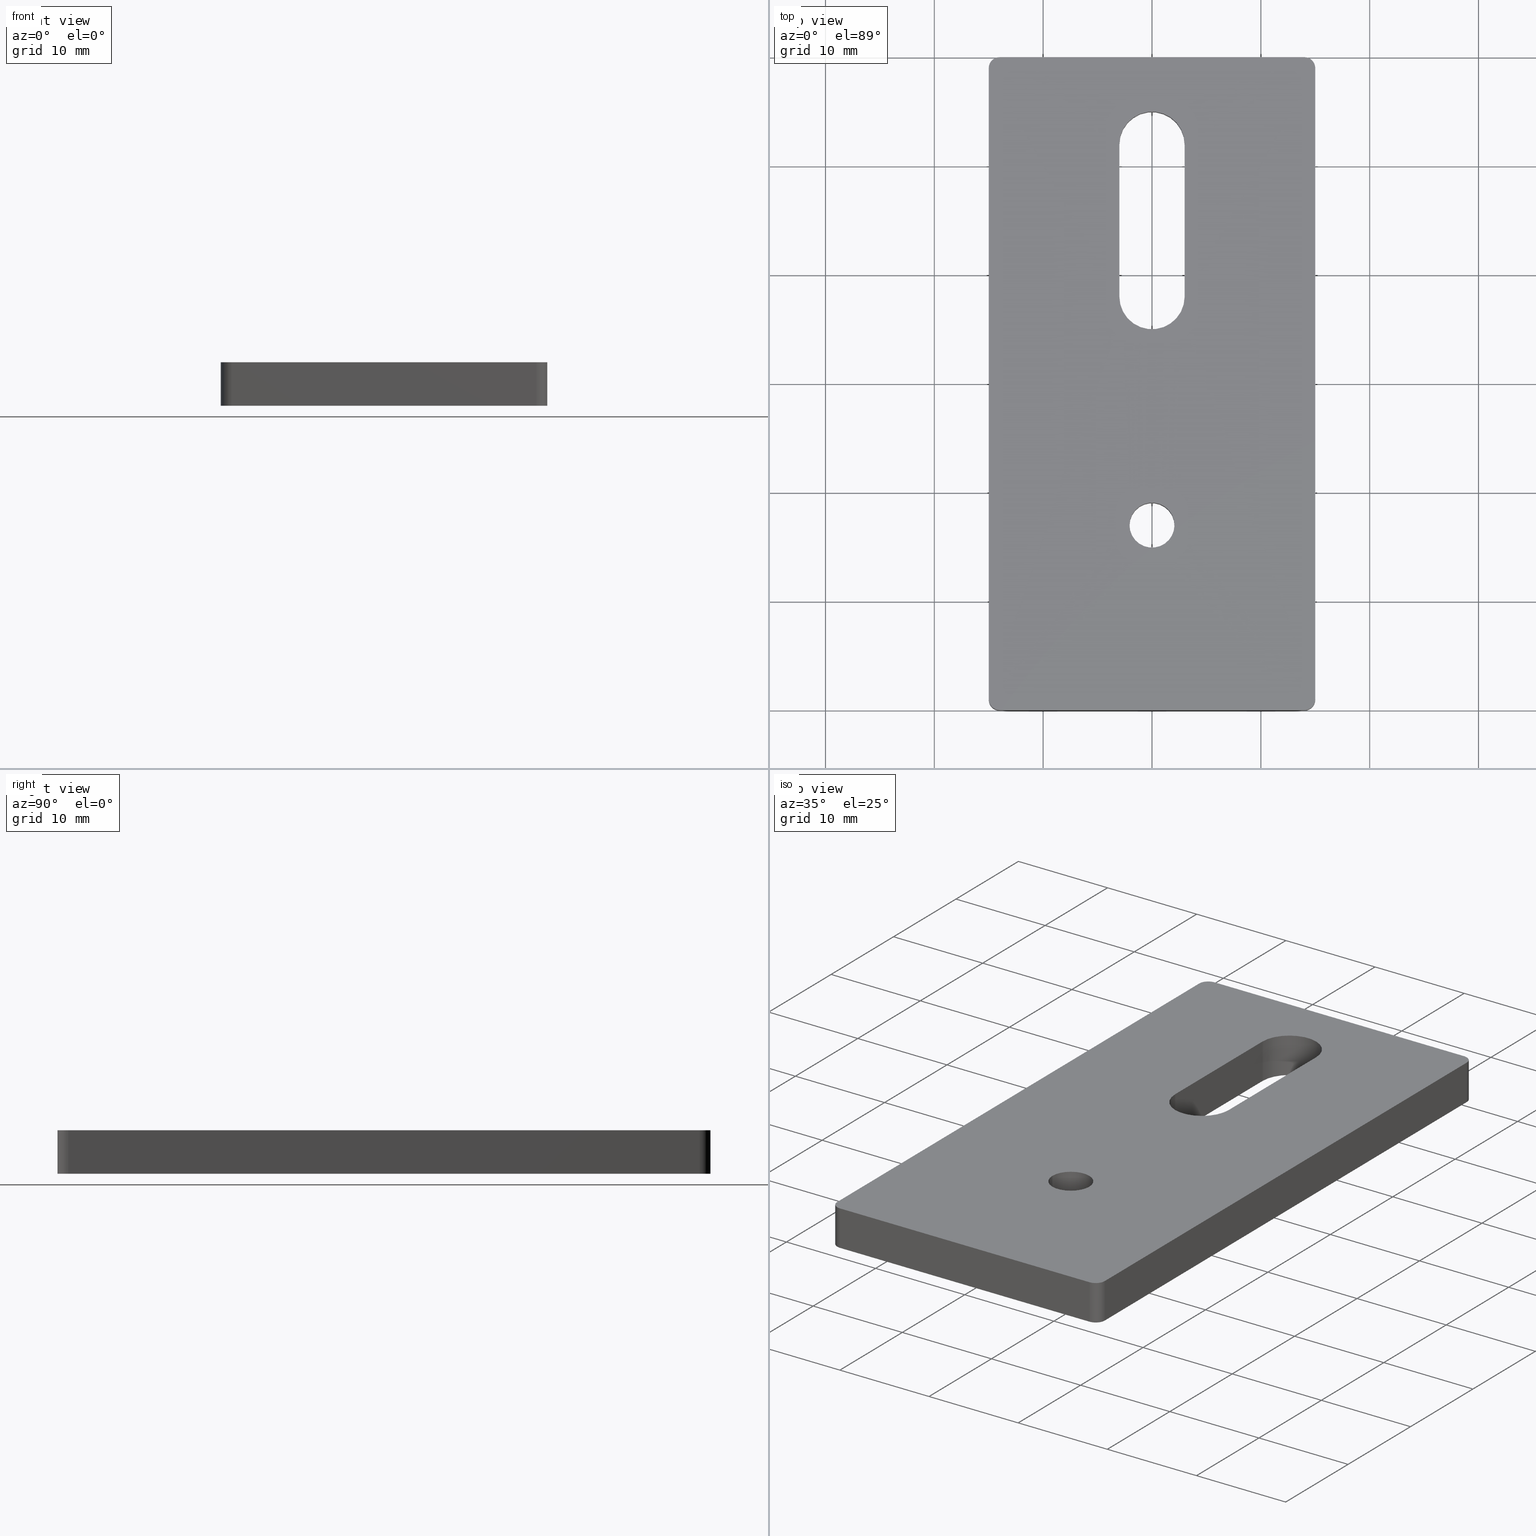
[diagram: canonical four-view strip — front | top / right | iso, engineering-drawing reading convention]
A machine part, canonical four-view strip (front | top / right | iso — engineering-drawing reading convention). The complete STEP part file that produces these views, byte-faithful:
ISO-10303-21;
HEADER;
/****************************************************************
 * Generated by software with PDE/Lib inside                    *
 * PDElib Version v4.4, created Mon 02/23/2004                  *
 * International Technegroup Inc. (www.iti-oh.com)              *
 ****************************************************************/
FILE_DESCRIPTION(('STEP AP203'),'2;1');
FILE_NAME('27.218.00.stp','2011-02-14T10:20:03',(''),(''),'2009.3.110','THINKDESIGN','');
FILE_SCHEMA(('CONFIG_CONTROL_DESIGN'));
ENDSEC;
DATA;
#2=CARTESIAN_POINT('',(0.0,16.999999999999986,-0.000000010000001));
#3=DIRECTION('',(0.0,0.0,1.0));
#4=DIRECTION('',(0.0,1.0,0.0));
#5=AXIS2_PLACEMENT_3D('',#2,#3,#4);
#6=CYLINDRICAL_SURFACE('',#5,2.066999999999999);
#7=CARTESIAN_POINT('',(-2.067000000000014,16.999999999999993,0.0));
#8=VERTEX_POINT('',#7);
#9=CARTESIAN_POINT('',(2.066999999999993,16.999999999999993,0.0));
#10=VERTEX_POINT('',#9);
#11=CARTESIAN_POINT('',(0.0,16.999999999999993,0.0));
#12=DIRECTION('',(0.0,0.0,1.0));
#13=DIRECTION('',(1.0,0.0,0.0));
#14=AXIS2_PLACEMENT_3D('',#11,#12,#13);
#15=CIRCLE('',#14,2.066999999999999);
#16=EDGE_CURVE('',#8,#10,#15,.T.);
#17=ORIENTED_EDGE('',*,*,#16,.F.);
#18=CARTESIAN_POINT('',(-2.067000000000014,16.999999999999993,4.0));
#19=VERTEX_POINT('',#18);
#20=CARTESIAN_POINT('',(-2.067000000000014,16.999999999999993,0.0));
#21=DIRECTION('',(0.0,0.0,1.0));
#22=VECTOR('',#21,4.0);
#23=LINE('',#20,#22);
#24=EDGE_CURVE('',#8,#19,#23,.T.);
#25=ORIENTED_EDGE('',*,*,#24,.T.);
#26=CARTESIAN_POINT('',(2.066999999999993,16.999999999999993,4.0));
#27=VERTEX_POINT('',#26);
#28=CARTESIAN_POINT('',(0.0,16.999999999999993,4.0));
#29=DIRECTION('',(0.0,0.0,1.0));
#30=DIRECTION('',(0.0,1.0,0.0));
#31=AXIS2_PLACEMENT_3D('',#28,#29,#30);
#32=CIRCLE('',#31,2.066999999999999);
#33=EDGE_CURVE('',#19,#27,#32,.T.);
#34=ORIENTED_EDGE('',*,*,#33,.T.);
#35=CARTESIAN_POINT('',(2.066999999999993,16.999999999999993,0.0));
#36=DIRECTION('',(0.0,0.0,1.0));
#37=VECTOR('',#36,4.0);
#38=LINE('',#35,#37);
#39=EDGE_CURVE('',#10,#27,#38,.T.);
#40=ORIENTED_EDGE('',*,*,#39,.F.);
#41=EDGE_LOOP('',(#17,#25,#34,#40));
#42=FACE_OUTER_BOUND('',#41,.T.);
#43=ADVANCED_FACE('',(#42),#6,.F.);
#44=CARTESIAN_POINT('',(-15.400000000000013,59.999999999999979,4.200000000000000));
#45=DIRECTION('',(0.0,-1.0,0.0));
#46=DIRECTION('',(0.0,0.0,-1.0));
#47=AXIS2_PLACEMENT_3D('',#44,#45,#46);
#48=PLANE('',#47);
#49=CARTESIAN_POINT('',(14.000000000000007,59.999999999999979,4.0));
#50=VERTEX_POINT('',#49);
#51=CARTESIAN_POINT('',(-14.000000000000007,59.999999999999979,4.0));
#52=VERTEX_POINT('',#51);
#53=CARTESIAN_POINT('',(14.000000000000007,59.999999999999979,4.0));
#54=DIRECTION('',(-1.0,0.0,0.0));
#55=VECTOR('',#54,28.000000000000014);
#56=LINE('',#53,#55);
#57=EDGE_CURVE('',#50,#52,#56,.T.);
#58=ORIENTED_EDGE('',*,*,#57,.F.);
#59=CARTESIAN_POINT('',(14.000000000000007,59.999999999999979,0.0));
#60=VERTEX_POINT('',#59);
#61=CARTESIAN_POINT('',(14.000000000000007,59.999999999999979,4.0));
#62=DIRECTION('',(0.0,0.0,-1.0));
#63=VECTOR('',#62,4.0);
#64=LINE('',#61,#63);
#65=EDGE_CURVE('',#50,#60,#64,.T.);
#66=ORIENTED_EDGE('',*,*,#65,.T.);
#67=CARTESIAN_POINT('',(-14.000000000000007,59.999999999999979,0.0));
#68=VERTEX_POINT('',#67);
#69=CARTESIAN_POINT('',(14.000000000000007,59.999999999999979,0.0));
#70=DIRECTION('',(-1.0,0.0,0.0));
#71=VECTOR('',#70,28.000000000000014);
#72=LINE('',#69,#71);
#73=EDGE_CURVE('',#60,#68,#72,.T.);
#74=ORIENTED_EDGE('',*,*,#73,.T.);
#75=CARTESIAN_POINT('',(-14.000000000000007,59.999999999999979,0.0));
#76=DIRECTION('',(0.0,0.0,1.0));
#77=VECTOR('',#76,4.0);
#78=LINE('',#75,#77);
#79=EDGE_CURVE('',#68,#52,#78,.T.);
#80=ORIENTED_EDGE('',*,*,#79,.T.);
#81=EDGE_LOOP('',(#58,#66,#74,#80));
#82=FACE_OUTER_BOUND('',#81,.T.);
#83=ADVANCED_FACE('',(#82),#48,.F.);
#84=CARTESIAN_POINT('',(-15.000000000000007,-1.899999999999999,4.200000000000000));
#85=DIRECTION('',(1.0,0.0,0.0));
#86=DIRECTION('',(0.0,0.0,-1.0));
#87=AXIS2_PLACEMENT_3D('',#84,#85,#86);
#88=PLANE('',#87);
#89=CARTESIAN_POINT('',(-15.000000000000007,58.999999999999979,0.0));
#90=VERTEX_POINT('',#89);
#91=CARTESIAN_POINT('',(-15.000000000000007,1.0,0.0));
#92=VERTEX_POINT('',#91);
#93=CARTESIAN_POINT('',(-15.000000000000007,58.999999999999979,0.0));
#94=DIRECTION('',(0.0,-1.0,0.0));
#95=VECTOR('',#94,57.999999999999979);
#96=LINE('',#93,#95);
#97=EDGE_CURVE('',#90,#92,#96,.T.);
#98=ORIENTED_EDGE('',*,*,#97,.T.);
#99=CARTESIAN_POINT('',(-15.000000000000007,1.0,4.0));
#100=VERTEX_POINT('',#99);
#101=CARTESIAN_POINT('',(-15.000000000000007,1.0,0.0));
#102=DIRECTION('',(0.0,0.0,1.0));
#103=VECTOR('',#102,4.0);
#104=LINE('',#101,#103);
#105=EDGE_CURVE('',#92,#100,#104,.T.);
#106=ORIENTED_EDGE('',*,*,#105,.T.);
#107=CARTESIAN_POINT('',(-15.000000000000007,58.999999999999979,4.0));
#108=VERTEX_POINT('',#107);
#109=CARTESIAN_POINT('',(-15.000000000000007,58.999999999999979,4.0));
#110=DIRECTION('',(0.0,-1.0,0.0));
#111=VECTOR('',#110,57.999999999999979);
#112=LINE('',#109,#111);
#113=EDGE_CURVE('',#108,#100,#112,.T.);
#114=ORIENTED_EDGE('',*,*,#113,.F.);
#115=CARTESIAN_POINT('',(-15.000000000000007,58.999999999999979,4.0));
#116=DIRECTION('',(0.0,0.0,-1.0));
#117=VECTOR('',#116,4.0);
#118=LINE('',#115,#117);
#119=EDGE_CURVE('',#108,#90,#118,.T.);
#120=ORIENTED_EDGE('',*,*,#119,.T.);
#121=EDGE_LOOP('',(#98,#106,#114,#120));
#122=FACE_OUTER_BOUND('',#121,.T.);
#123=ADVANCED_FACE('',(#122),#88,.F.);
#124=CARTESIAN_POINT('',(-15.400000000000013,0.0,-0.200000000000000));
#125=DIRECTION('',(0.0,1.0,0.0));
#126=DIRECTION('',(0.0,0.0,1.0));
#127=AXIS2_PLACEMENT_3D('',#124,#125,#126);
#128=PLANE('',#127);
#129=CARTESIAN_POINT('',(-14.000000000000007,0.0,4.0));
#130=VERTEX_POINT('',#129);
#131=CARTESIAN_POINT('',(14.000000000000007,0.0,4.0));
#132=VERTEX_POINT('',#131);
#133=CARTESIAN_POINT('',(-14.000000000000007,0.0,4.0));
#134=DIRECTION('',(1.0,0.0,0.0));
#135=VECTOR('',#134,28.000000000000014);
#136=LINE('',#133,#135);
#137=EDGE_CURVE('',#130,#132,#136,.T.);
#138=ORIENTED_EDGE('',*,*,#137,.F.);
#139=CARTESIAN_POINT('',(-14.000000000000007,0.0,0.0));
#140=VERTEX_POINT('',#139);
#141=CARTESIAN_POINT('',(-14.000000000000007,0.0,4.0));
#142=DIRECTION('',(0.0,0.0,-1.0));
#143=VECTOR('',#142,4.0);
#144=LINE('',#141,#143);
#145=EDGE_CURVE('',#130,#140,#144,.T.);
#146=ORIENTED_EDGE('',*,*,#145,.T.);
#147=CARTESIAN_POINT('',(14.000000000000007,0.0,0.0));
#148=VERTEX_POINT('',#147);
#149=CARTESIAN_POINT('',(-14.000000000000007,0.0,0.0));
#150=DIRECTION('',(1.0,0.0,0.0));
#151=VECTOR('',#150,28.000000000000014);
#152=LINE('',#149,#151);
#153=EDGE_CURVE('',#140,#148,#152,.T.);
#154=ORIENTED_EDGE('',*,*,#153,.T.);
#155=CARTESIAN_POINT('',(14.000000000000007,0.0,0.0));
#156=DIRECTION('',(0.0,0.0,1.0));
#157=VECTOR('',#156,4.0);
#158=LINE('',#155,#157);
#159=EDGE_CURVE('',#148,#132,#158,.T.);
#160=ORIENTED_EDGE('',*,*,#159,.T.);
#161=EDGE_LOOP('',(#138,#146,#154,#160));
#162=FACE_OUTER_BOUND('',#161,.T.);
#163=ADVANCED_FACE('',(#162),#128,.F.);
#164=CARTESIAN_POINT('',(15.000000000000007,-1.899999999999999,-0.200000000000000));
#165=DIRECTION('',(-1.0,0.0,0.0));
#166=DIRECTION('',(0.0,0.0,1.0));
#167=AXIS2_PLACEMENT_3D('',#164,#165,#166);
#168=PLANE('',#167);
#169=CARTESIAN_POINT('',(15.000000000000007,1.0,4.0));
#170=VERTEX_POINT('',#169);
#171=CARTESIAN_POINT('',(15.000000000000007,58.999999999999979,4.0));
#172=VERTEX_POINT('',#171);
#173=CARTESIAN_POINT('',(15.000000000000007,1.0,4.0));
#174=DIRECTION('',(0.0,1.0,0.0));
#175=VECTOR('',#174,57.999999999999979);
#176=LINE('',#173,#175);
#177=EDGE_CURVE('',#170,#172,#176,.T.);
#178=ORIENTED_EDGE('',*,*,#177,.F.);
#179=CARTESIAN_POINT('',(15.000000000000007,1.0,0.0));
#180=VERTEX_POINT('',#179);
#181=CARTESIAN_POINT('',(15.000000000000007,1.0,4.0));
#182=DIRECTION('',(0.0,0.0,-1.0));
#183=VECTOR('',#182,4.0);
#184=LINE('',#181,#183);
#185=EDGE_CURVE('',#170,#180,#184,.T.);
#186=ORIENTED_EDGE('',*,*,#185,.T.);
#187=CARTESIAN_POINT('',(15.000000000000007,58.999999999999979,0.0));
#188=VERTEX_POINT('',#187);
#189=CARTESIAN_POINT('',(15.000000000000007,1.0,0.0));
#190=DIRECTION('',(0.0,1.0,0.0));
#191=VECTOR('',#190,57.999999999999979);
#192=LINE('',#189,#191);
#193=EDGE_CURVE('',#180,#188,#192,.T.);
#194=ORIENTED_EDGE('',*,*,#193,.T.);
#195=CARTESIAN_POINT('',(15.000000000000007,58.999999999999979,0.0));
#196=DIRECTION('',(0.0,0.0,1.0));
#197=VECTOR('',#196,4.0);
#198=LINE('',#195,#197);
#199=EDGE_CURVE('',#188,#172,#198,.T.);
#200=ORIENTED_EDGE('',*,*,#199,.T.);
#201=EDGE_LOOP('',(#178,#186,#194,#200));
#202=FACE_OUTER_BOUND('',#201,.T.);
#203=ADVANCED_FACE('',(#202),#168,.F.);
#204=CARTESIAN_POINT('',(-16.500000000000007,-3.0,4.0));
#205=DIRECTION('',(0.0,0.0,1.0));
#206=DIRECTION('',(1.0,0.0,0.0));
#207=AXIS2_PLACEMENT_3D('',#204,#205,#206);
#208=PLANE('',#207);
#209=ORIENTED_EDGE('',*,*,#113,.T.);
#210=CARTESIAN_POINT('',(-14.000000000000007,1.0,4.0));
#211=DIRECTION('',(0.0,0.0,1.0));
#212=DIRECTION('',(1.0,0.0,0.0));
#213=AXIS2_PLACEMENT_3D('',#210,#211,#212);
#214=CIRCLE('',#213,1.000000000000001);
#215=EDGE_CURVE('',#100,#130,#214,.T.);
#216=ORIENTED_EDGE('',*,*,#215,.T.);
#217=ORIENTED_EDGE('',*,*,#137,.T.);
#218=CARTESIAN_POINT('',(14.000000000000007,1.0,4.0));
#219=DIRECTION('',(0.0,0.0,1.0));
#220=DIRECTION('',(1.0,0.0,0.0));
#221=AXIS2_PLACEMENT_3D('',#218,#219,#220);
#222=CIRCLE('',#221,1.000000000000001);
#223=EDGE_CURVE('',#132,#170,#222,.T.);
#224=ORIENTED_EDGE('',*,*,#223,.T.);
#225=ORIENTED_EDGE('',*,*,#177,.T.);
#226=CARTESIAN_POINT('',(14.000000000000007,58.999999999999979,4.0));
#227=DIRECTION('',(0.0,0.0,1.0));
#228=DIRECTION('',(1.0,0.0,0.0));
#229=AXIS2_PLACEMENT_3D('',#226,#227,#228);
#230=CIRCLE('',#229,1.000000000000001);
#231=EDGE_CURVE('',#172,#50,#230,.T.);
#232=ORIENTED_EDGE('',*,*,#231,.T.);
#233=ORIENTED_EDGE('',*,*,#57,.T.);
#234=CARTESIAN_POINT('',(-14.000000000000007,58.999999999999979,4.0));
#235=DIRECTION('',(0.0,0.0,1.0));
#236=DIRECTION('',(1.0,0.0,0.0));
#237=AXIS2_PLACEMENT_3D('',#234,#235,#236);
#238=CIRCLE('',#237,1.000000000000001);
#239=EDGE_CURVE('',#52,#108,#238,.T.);
#240=ORIENTED_EDGE('',*,*,#239,.T.);
#241=EDGE_LOOP('',(#209,#216,#217,#224,#225,#232,#233,#240));
#242=FACE_OUTER_BOUND('',#241,.T.);
#243=CARTESIAN_POINT('',(0.0,16.999999999999993,4.0));
#244=DIRECTION('',(0.0,0.0,1.0));
#245=DIRECTION('',(0.0,1.0,0.0));
#246=AXIS2_PLACEMENT_3D('',#243,#244,#245);
#247=CIRCLE('',#246,2.066999999999999);
#248=EDGE_CURVE('',#27,#19,#247,.T.);
#249=ORIENTED_EDGE('',*,*,#248,.F.);
#250=ORIENTED_EDGE('',*,*,#33,.F.);
#251=EDGE_LOOP('',(#249,#250));
#252=FACE_BOUND('',#251,.T.);
#253=CARTESIAN_POINT('',(3.0,51.999999999999993,4.0));
#254=VERTEX_POINT('',#253);
#255=CARTESIAN_POINT('',(-3.000000000000007,51.999999999999993,4.0));
#256=VERTEX_POINT('',#255);
#257=CARTESIAN_POINT('',(0.0,51.999999999999993,4.0));
#258=DIRECTION('',(0.0,0.0,1.0));
#259=DIRECTION('',(0.0,-1.0,0.0));
#260=AXIS2_PLACEMENT_3D('',#257,#258,#259);
#261=CIRCLE('',#260,3.000000000000002);
#262=EDGE_CURVE('',#254,#256,#261,.T.);
#263=ORIENTED_EDGE('',*,*,#262,.F.);
#264=CARTESIAN_POINT('',(3.0,37.999999999999993,4.0));
#265=VERTEX_POINT('',#264);
#266=CARTESIAN_POINT('',(3.0,37.999999999999993,4.0));
#267=DIRECTION('',(0.0,1.0,0.0));
#268=VECTOR('',#267,14.0);
#269=LINE('',#266,#268);
#270=EDGE_CURVE('',#265,#254,#269,.T.);
#271=ORIENTED_EDGE('',*,*,#270,.F.);
#272=CARTESIAN_POINT('',(-3.000000000000007,37.999999999999993,4.0));
#273=VERTEX_POINT('',#272);
#274=CARTESIAN_POINT('',(0.0,38.000000000000007,4.0));
#275=DIRECTION('',(0.0,0.0,1.0));
#276=DIRECTION('',(0.0,1.0,0.0));
#277=AXIS2_PLACEMENT_3D('',#274,#275,#276);
#278=CIRCLE('',#277,2.999999999999996);
#279=EDGE_CURVE('',#273,#265,#278,.T.);
#280=ORIENTED_EDGE('',*,*,#279,.F.);
#281=CARTESIAN_POINT('',(-3.000000000000007,51.999999999999993,4.0));
#282=DIRECTION('',(0.0,-1.0,0.0));
#283=VECTOR('',#282,14.0);
#284=LINE('',#281,#283);
#285=EDGE_CURVE('',#256,#273,#284,.T.);
#286=ORIENTED_EDGE('',*,*,#285,.F.);
#287=EDGE_LOOP('',(#263,#271,#280,#286));
#288=FACE_BOUND('',#287,.T.);
#289=ADVANCED_FACE('',(#242,#252,#288),#208,.T.);
#290=CARTESIAN_POINT('',(-16.500000000000007,-3.0,0.0));
#291=DIRECTION('',(0.0,0.0,1.0));
#292=DIRECTION('',(1.0,0.0,0.0));
#293=AXIS2_PLACEMENT_3D('',#290,#291,#292);
#294=PLANE('',#293);
#295=ORIENTED_EDGE('',*,*,#153,.F.);
#296=CARTESIAN_POINT('',(-14.000000000000007,1.0,0.0));
#297=DIRECTION('',(0.0,0.0,-1.0));
#298=DIRECTION('',(1.0,0.0,0.0));
#299=AXIS2_PLACEMENT_3D('',#296,#297,#298);
#300=CIRCLE('',#299,1.000000000000001);
#301=EDGE_CURVE('',#140,#92,#300,.T.);
#302=ORIENTED_EDGE('',*,*,#301,.T.);
#303=ORIENTED_EDGE('',*,*,#97,.F.);
#304=CARTESIAN_POINT('',(-14.000000000000007,58.999999999999979,0.0));
#305=DIRECTION('',(0.0,0.0,-1.0));
#306=DIRECTION('',(1.0,0.0,0.0));
#307=AXIS2_PLACEMENT_3D('',#304,#305,#306);
#308=CIRCLE('',#307,1.000000000000001);
#309=EDGE_CURVE('',#90,#68,#308,.T.);
#310=ORIENTED_EDGE('',*,*,#309,.T.);
#311=ORIENTED_EDGE('',*,*,#73,.F.);
#312=CARTESIAN_POINT('',(14.000000000000007,58.999999999999979,0.0));
#313=DIRECTION('',(0.0,0.0,-1.0));
#314=DIRECTION('',(1.0,0.0,0.0));
#315=AXIS2_PLACEMENT_3D('',#312,#313,#314);
#316=CIRCLE('',#315,1.000000000000001);
#317=EDGE_CURVE('',#60,#188,#316,.T.);
#318=ORIENTED_EDGE('',*,*,#317,.T.);
#319=ORIENTED_EDGE('',*,*,#193,.F.);
#320=CARTESIAN_POINT('',(14.000000000000007,1.0,0.0));
#321=DIRECTION('',(0.0,0.0,-1.0));
#322=DIRECTION('',(1.0,0.0,0.0));
#323=AXIS2_PLACEMENT_3D('',#320,#321,#322);
#324=CIRCLE('',#323,1.000000000000001);
#325=EDGE_CURVE('',#180,#148,#324,.T.);
#326=ORIENTED_EDGE('',*,*,#325,.T.);
#327=EDGE_LOOP('',(#295,#302,#303,#310,#311,#318,#319,#326));
#328=FACE_OUTER_BOUND('',#327,.T.);
#329=CARTESIAN_POINT('',(0.0,16.999999999999993,0.0));
#330=DIRECTION('',(0.0,0.0,1.0));
#331=DIRECTION('',(1.0,0.0,0.0));
#332=AXIS2_PLACEMENT_3D('',#329,#330,#331);
#333=CIRCLE('',#332,2.066999999999999);
#334=EDGE_CURVE('',#10,#8,#333,.T.);
#335=ORIENTED_EDGE('',*,*,#334,.T.);
#336=ORIENTED_EDGE('',*,*,#16,.T.);
#337=EDGE_LOOP('',(#335,#336));
#338=FACE_BOUND('',#337,.T.);
#339=CARTESIAN_POINT('',(3.0,37.999999999999993,0.0));
#340=VERTEX_POINT('',#339);
#341=CARTESIAN_POINT('',(3.0,51.999999999999993,0.0));
#342=VERTEX_POINT('',#341);
#343=CARTESIAN_POINT('',(3.0,37.999999999999993,0.0));
#344=DIRECTION('',(0.0,1.0,0.0));
#345=VECTOR('',#344,14.0);
#346=LINE('',#343,#345);
#347=EDGE_CURVE('',#340,#342,#346,.T.);
#348=ORIENTED_EDGE('',*,*,#347,.T.);
#349=CARTESIAN_POINT('',(-3.000000000000007,51.999999999999993,0.0));
#350=VERTEX_POINT('',#349);
#351=CARTESIAN_POINT('',(0.0,51.999999999999993,0.0));
#352=DIRECTION('',(0.0,0.0,1.0));
#353=DIRECTION('',(1.0,0.0,0.0));
#354=AXIS2_PLACEMENT_3D('',#351,#352,#353);
#355=CIRCLE('',#354,3.000000000000002);
#356=EDGE_CURVE('',#342,#350,#355,.T.);
#357=ORIENTED_EDGE('',*,*,#356,.T.);
#358=CARTESIAN_POINT('',(-3.000000000000007,37.999999999999993,0.0));
#359=VERTEX_POINT('',#358);
#360=CARTESIAN_POINT('',(-3.000000000000007,51.999999999999993,0.0));
#361=DIRECTION('',(0.0,-1.0,0.0));
#362=VECTOR('',#361,14.0);
#363=LINE('',#360,#362);
#364=EDGE_CURVE('',#350,#359,#363,.T.);
#365=ORIENTED_EDGE('',*,*,#364,.T.);
#366=CARTESIAN_POINT('',(0.0,38.000000000000007,0.0));
#367=DIRECTION('',(0.0,0.0,1.0));
#368=DIRECTION('',(1.0,0.0,0.0));
#369=AXIS2_PLACEMENT_3D('',#366,#367,#368);
#370=CIRCLE('',#369,3.000000000000002);
#371=EDGE_CURVE('',#359,#340,#370,.T.);
#372=ORIENTED_EDGE('',*,*,#371,.T.);
#373=EDGE_LOOP('',(#348,#357,#365,#372));
#374=FACE_BOUND('',#373,.T.);
#375=ADVANCED_FACE('',(#328,#338,#374),#294,.F.);
#376=CARTESIAN_POINT('',(0.0,16.999999999999993,-0.000000010000001));
#377=DIRECTION('',(0.0,0.0,1.0));
#378=DIRECTION('',(0.0,-1.0,0.0));
#379=AXIS2_PLACEMENT_3D('',#376,#377,#378);
#380=CYLINDRICAL_SURFACE('',#379,2.066999999999999);
#381=ORIENTED_EDGE('',*,*,#24,.F.);
#382=ORIENTED_EDGE('',*,*,#334,.F.);
#383=ORIENTED_EDGE('',*,*,#39,.T.);
#384=ORIENTED_EDGE('',*,*,#248,.T.);
#385=EDGE_LOOP('',(#381,#382,#383,#384));
#386=FACE_OUTER_BOUND('',#385,.T.);
#387=ADVANCED_FACE('',(#386),#380,.F.);
#388=CARTESIAN_POINT('',(7.105427E-015,51.999999999999993,-0.000000010000001));
#389=DIRECTION('',(0.0,0.0,1.0));
#390=DIRECTION('',(0.0,-1.0,0.0));
#391=AXIS2_PLACEMENT_3D('',#388,#389,#390);
#392=CYLINDRICAL_SURFACE('',#391,3.000000000000002);
#393=CARTESIAN_POINT('',(3.0,51.999999999999993,0.0));
#394=DIRECTION('',(0.0,0.0,1.0));
#395=VECTOR('',#394,4.0);
#396=LINE('',#393,#395);
#397=EDGE_CURVE('',#342,#254,#396,.T.);
#398=ORIENTED_EDGE('',*,*,#397,.T.);
#399=ORIENTED_EDGE('',*,*,#262,.T.);
#400=CARTESIAN_POINT('',(-3.000000000000007,51.999999999999993,0.0));
#401=DIRECTION('',(0.0,0.0,1.0));
#402=VECTOR('',#401,4.0);
#403=LINE('',#400,#402);
#404=EDGE_CURVE('',#350,#256,#403,.T.);
#405=ORIENTED_EDGE('',*,*,#404,.F.);
#406=ORIENTED_EDGE('',*,*,#356,.F.);
#407=EDGE_LOOP('',(#398,#399,#405,#406));
#408=FACE_OUTER_BOUND('',#407,.T.);
#409=ADVANCED_FACE('',(#408),#392,.F.);
#410=CARTESIAN_POINT('',(-3.000000000000007,37.299999999999990,-0.200000000000003));
#411=DIRECTION('',(-1.0,0.0,0.0));
#412=DIRECTION('',(0.0,0.0,1.0));
#413=AXIS2_PLACEMENT_3D('',#410,#411,#412);
#414=PLANE('',#413);
#415=ORIENTED_EDGE('',*,*,#404,.T.);
#416=ORIENTED_EDGE('',*,*,#285,.T.);
#417=CARTESIAN_POINT('',(-3.000000000000007,37.999999999999993,0.0));
#418=DIRECTION('',(0.0,0.0,1.0));
#419=VECTOR('',#418,4.0);
#420=LINE('',#417,#419);
#421=EDGE_CURVE('',#359,#273,#420,.T.);
#422=ORIENTED_EDGE('',*,*,#421,.F.);
#423=ORIENTED_EDGE('',*,*,#364,.F.);
#424=EDGE_LOOP('',(#415,#416,#422,#423));
#425=FACE_OUTER_BOUND('',#424,.T.);
#426=ADVANCED_FACE('',(#425),#414,.F.);
#427=CARTESIAN_POINT('',(0.0,38.000000000000007,-0.000000010000001));
#428=DIRECTION('',(0.0,0.0,1.0));
#429=DIRECTION('',(0.0,1.0,0.0));
#430=AXIS2_PLACEMENT_3D('',#427,#428,#429);
#431=CYLINDRICAL_SURFACE('',#430,3.000000000000002);
#432=ORIENTED_EDGE('',*,*,#421,.T.);
#433=ORIENTED_EDGE('',*,*,#279,.T.);
#434=CARTESIAN_POINT('',(3.0,37.999999999999993,0.0));
#435=DIRECTION('',(0.0,0.0,1.0));
#436=VECTOR('',#435,4.0);
#437=LINE('',#434,#436);
#438=EDGE_CURVE('',#340,#265,#437,.T.);
#439=ORIENTED_EDGE('',*,*,#438,.F.);
#440=ORIENTED_EDGE('',*,*,#371,.F.);
#441=EDGE_LOOP('',(#432,#433,#439,#440));
#442=FACE_OUTER_BOUND('',#441,.T.);
#443=ADVANCED_FACE('',(#442),#431,.F.);
#444=CARTESIAN_POINT('',(3.0,37.299999999999990,4.200000000000003));
#445=DIRECTION('',(1.0,0.0,0.0));
#446=DIRECTION('',(0.0,0.0,-1.0));
#447=AXIS2_PLACEMENT_3D('',#444,#445,#446);
#448=PLANE('',#447);
#449=ORIENTED_EDGE('',*,*,#438,.T.);
#450=ORIENTED_EDGE('',*,*,#270,.T.);
#451=ORIENTED_EDGE('',*,*,#397,.F.);
#452=ORIENTED_EDGE('',*,*,#347,.F.);
#453=EDGE_LOOP('',(#449,#450,#451,#452));
#454=FACE_OUTER_BOUND('',#453,.T.);
#455=ADVANCED_FACE('',(#454),#448,.F.);
#456=CARTESIAN_POINT('',(-14.000000000000007,58.999999999999979,4.000000010000000));
#457=DIRECTION('',(0.0,0.0,-1.0));
#458=DIRECTION('',(0.707106781186547,-0.707106781186548,0.0));
#459=AXIS2_PLACEMENT_3D('',#456,#457,#458);
#460=CYLINDRICAL_SURFACE('',#459,1.000000000000001);
#461=ORIENTED_EDGE('',*,*,#239,.F.);
#462=ORIENTED_EDGE('',*,*,#79,.F.);
#463=ORIENTED_EDGE('',*,*,#309,.F.);
#464=ORIENTED_EDGE('',*,*,#119,.F.);
#465=EDGE_LOOP('',(#461,#462,#463,#464));
#466=FACE_OUTER_BOUND('',#465,.T.);
#467=ADVANCED_FACE('',(#466),#460,.T.);
#468=CARTESIAN_POINT('',(14.000000000000007,58.999999999999979,4.000000010000000));
#469=DIRECTION('',(0.0,0.0,-1.0));
#470=DIRECTION('',(-1.0,0.0,0.0));
#471=AXIS2_PLACEMENT_3D('',#468,#469,#470);
#472=CYLINDRICAL_SURFACE('',#471,1.000000000000001);
#473=ORIENTED_EDGE('',*,*,#231,.F.);
#474=ORIENTED_EDGE('',*,*,#199,.F.);
#475=ORIENTED_EDGE('',*,*,#317,.F.);
#476=ORIENTED_EDGE('',*,*,#65,.F.);
#477=EDGE_LOOP('',(#473,#474,#475,#476));
#478=FACE_OUTER_BOUND('',#477,.T.);
#479=ADVANCED_FACE('',(#478),#472,.T.);
#480=CARTESIAN_POINT('',(14.000000000000007,1.0,4.000000010000000));
#481=DIRECTION('',(0.0,0.0,-1.0));
#482=DIRECTION('',(-1.0,0.0,0.0));
#483=AXIS2_PLACEMENT_3D('',#480,#481,#482);
#484=CYLINDRICAL_SURFACE('',#483,1.000000000000001);
#485=ORIENTED_EDGE('',*,*,#223,.F.);
#486=ORIENTED_EDGE('',*,*,#159,.F.);
#487=ORIENTED_EDGE('',*,*,#325,.F.);
#488=ORIENTED_EDGE('',*,*,#185,.F.);
#489=EDGE_LOOP('',(#485,#486,#487,#488));
#490=FACE_OUTER_BOUND('',#489,.T.);
#491=ADVANCED_FACE('',(#490),#484,.T.);
#492=CARTESIAN_POINT('',(-14.000000000000007,1.0,4.000000010000000));
#493=DIRECTION('',(0.0,0.0,-1.0));
#494=DIRECTION('',(0.707106781186547,0.707106781186548,0.0));
#495=AXIS2_PLACEMENT_3D('',#492,#493,#494);
#496=CYLINDRICAL_SURFACE('',#495,1.000000000000001);
#497=ORIENTED_EDGE('',*,*,#215,.F.);
#498=ORIENTED_EDGE('',*,*,#105,.F.);
#499=ORIENTED_EDGE('',*,*,#301,.F.);
#500=ORIENTED_EDGE('',*,*,#145,.F.);
#501=EDGE_LOOP('',(#497,#498,#499,#500));
#502=FACE_OUTER_BOUND('',#501,.T.);
#503=ADVANCED_FACE('',(#502),#496,.T.);
#504=CLOSED_SHELL('',(#43,#83,#123,#163,#203,#289,#375,#387,#409,#426,#443,#455,#467,#479,#491,#503));
#505=MANIFOLD_SOLID_BREP('Importato1',#504);
#511=(NAMED_UNIT(*)PLANE_ANGLE_UNIT()SI_UNIT($,.RADIAN.));
#512=DIMENSIONAL_EXPONENTS(0.0,0.0,0.0,0.0,0.0,0.0,0.0);
#513=PLANE_ANGLE_MEASURE_WITH_UNIT(PLANE_ANGLE_MEASURE(0.017453292500000),#511);
#517=(CONVERSION_BASED_UNIT('DEGREE',#513)NAMED_UNIT(#512)PLANE_ANGLE_UNIT());
#521=(NAMED_UNIT(*)SI_UNIT($,.STERADIAN.)SOLID_ANGLE_UNIT());
#525=(LENGTH_UNIT()NAMED_UNIT(*)SI_UNIT(.MILLI.,.METRE.));
#527=UNCERTAINTY_MEASURE_WITH_UNIT(LENGTH_MEASURE(0.001000000000000),#525,'DISTANCE_ACCURACY_VALUE','');
#529=(GEOMETRIC_REPRESENTATION_CONTEXT(3)GLOBAL_UNCERTAINTY_ASSIGNED_CONTEXT((#527))GLOBAL_UNIT_ASSIGNED_CONTEXT((#517,#521,#525))REPRESENTATION_CONTEXT('thinkdesign','2009.3.110'));
#530=ADVANCED_BREP_SHAPE_REPRESENTATION('',(#505),#529);
#531=APPLICATION_CONTEXT('configuration controlled 3D designs of mechanical parts and assemblies');
#532=APPLICATION_PROTOCOL_DEFINITION('International Standard','config_control_design',1995,#531);
#533=MECHANICAL_CONTEXT('None',#531,'mechanical');
#534=PRODUCT('None','None','None',(#533));
#535=PRODUCT_RELATED_PRODUCT_CATEGORY('detail',$,(#534));
#536=PRODUCT_CATEGORY('part',$);
#537=PRODUCT_CATEGORY_RELATIONSHIP('None','None',#536,#535);
#538=PERSON('PERSON1','None','None',$,$,$);
#539=ORGANIZATION('','None','None');
#540=PERSON_AND_ORGANIZATION(#538,#539);
#541=PERSON_AND_ORGANIZATION_ROLE('design_owner');
#542=CC_DESIGN_PERSON_AND_ORGANIZATION_ASSIGNMENT(#540,#541,(#534));
#543=PRODUCT_DEFINITION_FORMATION_WITH_SPECIFIED_SOURCE('None','None',#534,.NOT_KNOWN.);
#544=PERSON('PERSON2','None','None',$,$,$);
#545=ORGANIZATION('','None','None');
#546=PERSON_AND_ORGANIZATION(#544,#545);
#547=PERSON_AND_ORGANIZATION_ROLE('creator');
#548=CC_DESIGN_PERSON_AND_ORGANIZATION_ASSIGNMENT(#546,#547,(#543));
#549=PERSON('PERSON3','None','None',$,$,$);
#550=ORGANIZATION('','None','None');
#551=PERSON_AND_ORGANIZATION(#549,#550);
#552=PERSON_AND_ORGANIZATION_ROLE('part_supplier');
#553=CC_DESIGN_PERSON_AND_ORGANIZATION_ASSIGNMENT(#551,#552,(#543));
#554=APPROVAL_STATUS('approved');
#555=APPROVAL(#554,'None');
#556=PERSON('PERSON4','None','None',$,$,$);
#557=ORGANIZATION('','None','None');
#558=PERSON_AND_ORGANIZATION(#556,#557);
#559=APPROVAL_ROLE('None');
#560=APPROVAL_PERSON_ORGANIZATION(#558,#555,#559);
#561=CALENDAR_DATE(2011,14,2);
#562=COORDINATED_UNIVERSAL_TIME_OFFSET(0,0,.AHEAD.);
#563=LOCAL_TIME(10,20,3.0,#562);
#564=DATE_AND_TIME(#561,#563);
#565=APPROVAL_DATE_TIME(#564,#555);
#566=CC_DESIGN_APPROVAL(#555,(#543));
#567=SECURITY_CLASSIFICATION_LEVEL('unclassified');
#568=SECURITY_CLASSIFICATION('None','None',#567);
#569=CC_DESIGN_SECURITY_CLASSIFICATION(#568,(#543));
#570=APPROVAL_STATUS('approved');
#571=APPROVAL(#570,'None');
#572=PERSON('PERSON5','None','None',$,$,$);
#573=ORGANIZATION('','None','None');
#574=PERSON_AND_ORGANIZATION(#572,#573);
#575=APPROVAL_ROLE('None');
#576=APPROVAL_PERSON_ORGANIZATION(#574,#571,#575);
#577=CALENDAR_DATE(2011,14,2);
#578=COORDINATED_UNIVERSAL_TIME_OFFSET(0,0,.AHEAD.);
#579=LOCAL_TIME(10,20,3.0,#578);
#580=DATE_AND_TIME(#577,#579);
#581=APPROVAL_DATE_TIME(#580,#571);
#582=CC_DESIGN_APPROVAL(#571,(#568));
#583=PERSON('PERSON6','None','None',$,$,$);
#584=ORGANIZATION('','None','None');
#585=PERSON_AND_ORGANIZATION(#583,#584);
#586=PERSON_AND_ORGANIZATION_ROLE('classification_officer');
#587=CC_DESIGN_PERSON_AND_ORGANIZATION_ASSIGNMENT(#585,#586,(#568));
#588=DATE_TIME_ROLE('classification_date');
#589=CALENDAR_DATE(2011,14,2);
#590=COORDINATED_UNIVERSAL_TIME_OFFSET(0,0,.AHEAD.);
#591=LOCAL_TIME(10,20,3.0,#590);
#592=DATE_AND_TIME(#589,#591);
#593=CC_DESIGN_DATE_AND_TIME_ASSIGNMENT(#592,#588,(#568));
#594=DESIGN_CONTEXT('part definition',#531,'design');
#595=DOCUMENT_TYPE('cad_filename');
#596=DOCUMENT('None','None','None',#595);
#597=PRODUCT_DEFINITION_WITH_ASSOCIATED_DOCUMENTS('None','None',#543,#594,(#596));
#598=PERSON('PERSON7','None','None',$,$,$);
#599=ORGANIZATION('','None','None');
#600=PERSON_AND_ORGANIZATION(#598,#599);
#601=PERSON_AND_ORGANIZATION_ROLE('creator');
#602=CC_DESIGN_PERSON_AND_ORGANIZATION_ASSIGNMENT(#600,#601,(#597));
#603=DATE_TIME_ROLE('creation_date');
#604=CALENDAR_DATE(2011,14,2);
#605=COORDINATED_UNIVERSAL_TIME_OFFSET(0,0,.AHEAD.);
#606=LOCAL_TIME(10,20,3.0,#605);
#607=DATE_AND_TIME(#604,#606);
#608=CC_DESIGN_DATE_AND_TIME_ASSIGNMENT(#607,#603,(#597));
#609=APPROVAL_STATUS('approved');
#610=APPROVAL(#609,'None');
#611=PERSON('PERSON8','None','None',$,$,$);
#612=ORGANIZATION('','None','None');
#613=PERSON_AND_ORGANIZATION(#611,#612);
#614=APPROVAL_ROLE('None');
#615=APPROVAL_PERSON_ORGANIZATION(#613,#610,#614);
#616=CALENDAR_DATE(2011,14,2);
#617=COORDINATED_UNIVERSAL_TIME_OFFSET(0,0,.AHEAD.);
#618=LOCAL_TIME(10,20,3.0,#617);
#619=DATE_AND_TIME(#616,#618);
#620=APPROVAL_DATE_TIME(#619,#610);
#621=CC_DESIGN_APPROVAL(#610,(#597));
#622=PRODUCT_DEFINITION_SHAPE('None','None',#597);
#623=SHAPE_DEFINITION_REPRESENTATION(#622,#530);
#624=DIMENSIONAL_EXPONENTS(0.0,0.0,0.0,0.0,0.0,0.0,0.0);
#625=DIMENSIONAL_EXPONENTS(1.0,0.0,0.0,0.0,0.0,0.0,0.0);
ENDSEC;
END-ISO-10303-21;
